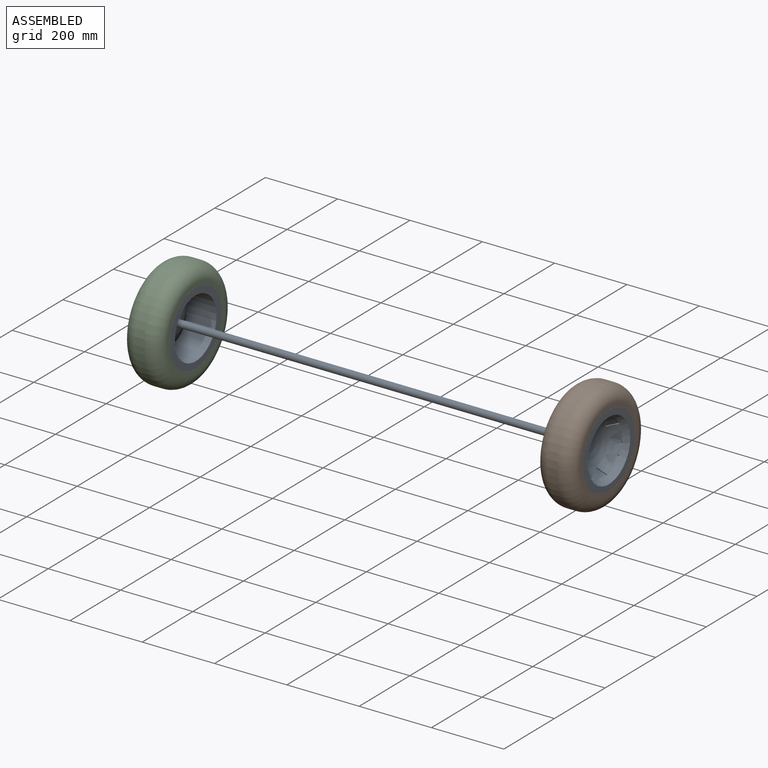
[diagram: assembled view]
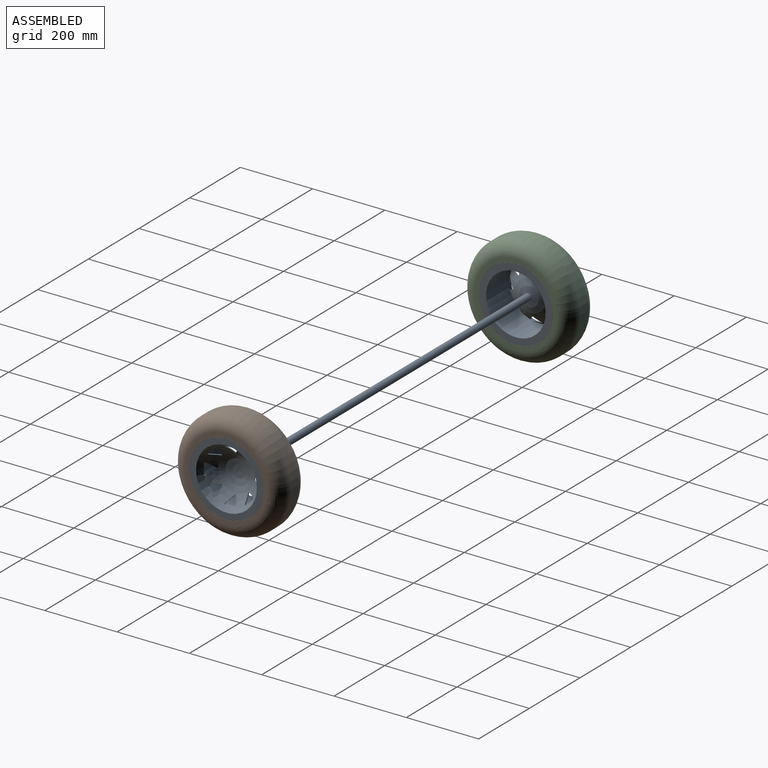
[diagram: assembled view, second angle]
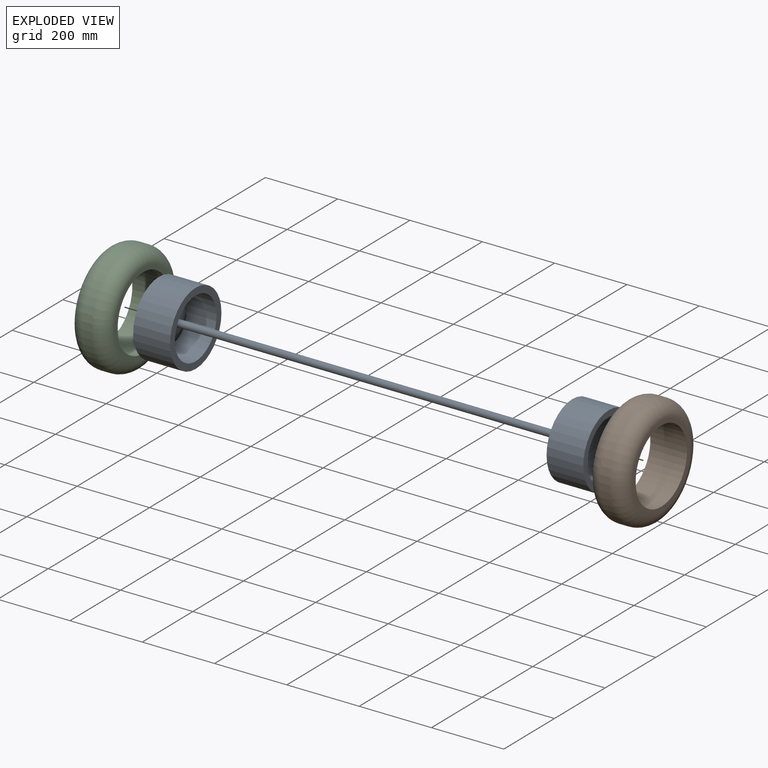
[diagram: exploded view]
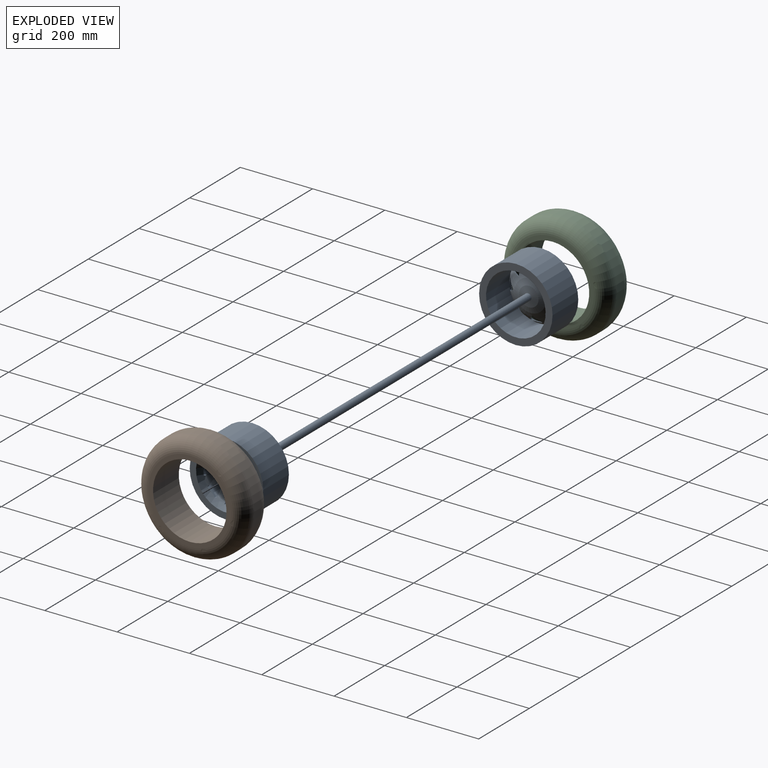
[diagram: exploded view, second angle]
ASSEMBLY  parts=3 mates=2
PART A: 109 faces, bbox 1244.6x203.2x203.2 mm
  f0: sphere r=95.25mm, area 25593.6mm2, adj f4,f13,f14,f15,f16,f17,f18,f19
  f1: sphere r=95.25mm, area 25593.6mm2, adj f5,f61,f62,f63,f64,f65,f66,f67
  f2: sphere r=98.42mm, area 22774.8mm2, adj f8,f9,f61,f62,f63,f64,f65,f66
  f3: sphere r=98.42mm, area 22774.8mm2, adj f9,f10,f13,f14,f15,f16,f17,f18
  f4: plane 203.2x203.2mm, normal (-1,0,0), area 10134.1mm2, adj f0,f12
  f5: plane 203.2x203.2mm, normal (1,0,0), area 10134.1mm2, adj f1,f6
  f6: cylinder r=101.6mm len=203.2mm, axis (-1,0,0), area 64858.6mm2, adj f5,f7
  f7: plane 203.2x203.2mm, normal (-1,0,0), area 11020.9mm2, adj f6,f8
  f8: cylinder r=82.55mm len=165.1mm, axis (-1,0,0), area 47951.6mm2, adj f2,f7
  f9: cylinder r=9.53mm len=1137.57mm, axis (-1,0,0), area 68080.8mm2, adj f2,f3
  f10: cylinder r=82.55mm len=165.1mm, axis (-1,0,0), area 47951.6mm2, adj f3,f11
  f11: plane 203.2x203.2mm, normal (1,0,0), area 11020.9mm2, adj f10,f12
  f12: cylinder r=101.6mm len=203.2mm, axis (-1,0,0), area 64858.6mm2, adj f4,f11
  f13: cylinder r=2.54mm len=9.19mm, axis (-1,0,0), area 28.3mm2, adj f0,f3,f14,f18
  f14: plane 19.7x16.44mm, normal (0,0.64,-0.77), area 89.5mm2, adj f0,f3,f13,f15
  f15: cylinder r=2.54mm len=4.4mm, axis (-1,0,0), area 16.8mm2, adj f0,f3,f14,f16
  f16: plane 19.7x16.44mm, normal (0,0.64,0.77), area 89.5mm2, adj f0,f3,f15,f17
  f17: cylinder r=2.54mm len=9.19mm, axis (-1,0,0), area 28.3mm2, adj f0,f3,f16,f18
  f18: plane 27.59x6.5mm, normal (0,-1,0), area 136.3mm2, adj f0,f3,f13,f17
  f19: cylinder r=2.54mm len=9.19mm, axis (-1,0,0), area 28.3mm2, adj f0,f3,f20,f24
  f20: plane 19.51x19.51mm, normal (0,-0.71,-0.71), area 136.3mm2, adj f0,f3,f19,f21
  f21: cylinder r=2.54mm len=9.19mm, axis (-1,0,0), area 28.3mm2, adj f0,f3,f20,f22
  f22: plane 21.38x19.7mm, normal (0,1,-0.09), area 89.5mm2, adj f0,f3,f21,f23
  f23: cylinder r=2.54mm len=4.4mm, axis (-1,0,0), area 16.8mm2, adj f0,f3,f22,f24
  f24: plane 21.38x19.7mm, normal (0,-0.09,1), area 89.5mm2, adj f0,f3,f19,f23
  f25: cylinder r=2.54mm len=9.19mm, axis (-1,0,0), area 28.3mm2, adj f0,f3,f26,f30
  f26: plane 27.59x6.5mm, normal (0,0,-1), area 136.3mm2, adj f0,f3,f25,f27
  f27: cylinder r=2.54mm len=9.19mm, axis (-1,0,0), area 28.3mm2, adj f0,f3,f26,f28
  f28: plane 19.7x16.44mm, normal (0,0.77,0.64), area 89.5mm2, adj f0,f3,f27,f29
  f29: cylinder r=2.54mm len=4.4mm, axis (-1,0,0), area 16.8mm2, adj f0,f3,f28,f30
  f30: plane 19.7x16.44mm, normal (0,-0.77,0.64), area 89.5mm2, adj f0,f3,f25,f29
  f31: cylinder r=2.54mm len=9.19mm, axis (-1,0,0), area 28.3mm2, adj f0,f3,f32,f36
  f32: plane 19.51x19.51mm, normal (0,-0.71,0.71), area 136.3mm2, adj f0,f3,f31,f33
  f33: cylinder r=2.54mm len=9.19mm, axis (-1,0,0), area 28.3mm2, adj f0,f3,f32,f34
  f34: plane 21.38x19.7mm, normal (0,-0.09,-1), area 89.5mm2, adj f0,f3,f33,f35
  f35: cylinder r=2.54mm len=4.4mm, axis (-1,0,0), area 16.8mm2, adj f0,f3,f34,f36
  f36: plane 21.38x19.7mm, normal (0,1,0.09), area 89.5mm2, adj f0,f3,f31,f35
  f37: cylinder r=2.54mm len=9.19mm, axis (-1,0,0), area 28.3mm2, adj f0,f3,f38,f42
  f38: plane 27.59x6.5mm, normal (0,0,1), area 136.3mm2, adj f0,f3,f37,f39
  f39: cylinder r=2.54mm len=9.19mm, axis (-1,0,0), area 28.3mm2, adj f0,f3,f38,f40
  f40: plane 19.7x16.44mm, normal (0,-0.77,-0.64), area 89.5mm2, adj f0,f3,f39,f41
  f41: cylinder r=2.54mm len=4.4mm, axis (-1,0,0), area 16.8mm2, adj f0,f3,f40,f42
  f42: plane 19.7x16.44mm, normal (0,0.77,-0.64), area 89.5mm2, adj f0,f3,f37,f41
  f43: cylinder r=2.54mm len=9.19mm, axis (-1,0,0), area 28.3mm2, adj f0,f3,f44,f48
  f44: plane 19.51x19.51mm, normal (0,0.71,0.71), area 136.3mm2, adj f0,f3,f43,f45
  f45: cylinder r=2.54mm len=9.19mm, axis (-1,0,0), area 28.3mm2, adj f0,f3,f44,f46
  f46: plane 21.38x19.7mm, normal (0,-1,0.09), area 89.5mm2, adj f0,f3,f45,f47
  f47: cylinder r=2.54mm len=4.4mm, axis (-1,0,0), area 16.8mm2, adj f0,f3,f46,f48
  f48: plane 21.38x19.7mm, normal (0,0.09,-1), area 89.5mm2, adj f0,f3,f43,f47
  f49: cylinder r=2.54mm len=9.19mm, axis (-1,0,0), area 28.3mm2, adj f0,f3,f50,f54
  f50: plane 27.59x6.5mm, normal (0,1,0), area 136.3mm2, adj f0,f3,f49,f51
  f51: cylinder r=2.54mm len=9.19mm, axis (-1,0,0), area 28.3mm2, adj f0,f3,f50,f52
  f52: plane 19.7x16.44mm, normal (0,-0.64,0.77), area 89.5mm2, adj f0,f3,f51,f53
  f53: cylinder r=2.54mm len=4.4mm, axis (-1,0,0), area 16.8mm2, adj f0,f3,f52,f54
  f54: plane 19.7x16.44mm, normal (0,-0.64,-0.77), area 89.5mm2, adj f0,f3,f49,f53
  f55: cylinder r=2.54mm len=9.19mm, axis (-1,0,0), area 28.3mm2, adj f0,f3,f56,f60
  f56: plane 19.51x19.51mm, normal (0,0.71,-0.71), area 136.3mm2, adj f0,f3,f55,f57
  f57: cylinder r=2.54mm len=9.19mm, axis (-1,0,0), area 28.3mm2, adj f0,f3,f56,f58
  f58: plane 21.38x19.7mm, normal (0,0.09,1), area 89.5mm2, adj f0,f3,f57,f59
  f59: cylinder r=2.54mm len=4.4mm, axis (-1,0,0), area 16.8mm2, adj f0,f3,f58,f60
  f60: plane 21.38x19.7mm, normal (0,-1,-0.09), area 89.5mm2, adj f0,f3,f55,f59
  f61: plane 27.59x6.5mm, normal (0,-1,0), area 136.3mm2, adj f1,f2,f62,f66
  f62: cylinder r=2.54mm len=9.19mm, axis (-1,0,0), area 28.3mm2, adj f1,f2,f61,f63
  f63: plane 19.7x16.44mm, normal (0,0.64,0.77), area 89.5mm2, adj f1,f2,f62,f64
  f64: cylinder r=2.54mm len=4.4mm, axis (-1,0,0), area 16.8mm2, adj f1,f2,f63,f65
  f65: plane 19.7x16.44mm, normal (0,0.64,-0.77), area 89.5mm2, adj f1,f2,f64,f66
  f66: cylinder r=2.54mm len=9.19mm, axis (-1,0,0), area 28.3mm2, adj f1,f2,f61,f65
  f67: plane 21.38x19.7mm, normal (0,-0.09,1), area 89.5mm2, adj f1,f2,f68,f72
  f68: cylinder r=2.54mm len=4.4mm, axis (-1,0,0), area 16.8mm2, adj f1,f2,f67,f69
  f69: plane 21.38x19.7mm, normal (0,1,-0.09), area 89.5mm2, adj f1,f2,f68,f70
  f70: cylinder r=2.54mm len=9.19mm, axis (-1,0,0), area 28.3mm2, adj f1,f2,f69,f71
  f71: plane 19.51x19.51mm, normal (0,-0.71,-0.71), area 136.3mm2, adj f1,f2,f70,f72
  f72: cylinder r=2.54mm len=9.19mm, axis (-1,0,0), area 28.3mm2, adj f1,f2,f67,f71
  f73: plane 19.7x16.44mm, normal (0,-0.77,0.64), area 89.5mm2, adj f1,f2,f74,f78
  f74: cylinder r=2.54mm len=4.4mm, axis (-1,0,0), area 16.8mm2, adj f1,f2,f73,f75
  f75: plane 19.7x16.44mm, normal (0,0.77,0.64), area 89.5mm2, adj f1,f2,f74,f76
  f76: cylinder r=2.54mm len=9.19mm, axis (-1,0,0), area 28.3mm2, adj f1,f2,f75,f77
  f77: plane 27.59x6.5mm, normal (0,0,-1), area 136.3mm2, adj f1,f2,f76,f78
  f78: cylinder r=2.54mm len=9.19mm, axis (-1,0,0), area 28.3mm2, adj f1,f2,f73,f77
  f79: plane 21.38x19.7mm, normal (0,1,0.09), area 89.5mm2, adj f1,f2,f80,f84
  f80: cylinder r=2.54mm len=4.4mm, axis (-1,0,0), area 16.8mm2, adj f1,f2,f79,f81
  f81: plane 21.38x19.7mm, normal (0,-0.09,-1), area 89.5mm2, adj f1,f2,f80,f82
  f82: cylinder r=2.54mm len=9.19mm, axis (-1,0,0), area 28.3mm2, adj f1,f2,f81,f83
  f83: plane 19.51x19.51mm, normal (0,-0.71,0.71), area 136.3mm2, adj f1,f2,f82,f84
  f84: cylinder r=2.54mm len=9.19mm, axis (-1,0,0), area 28.3mm2, adj f1,f2,f79,f83
  f85: plane 19.7x16.44mm, normal (0,0.77,-0.64), area 89.5mm2, adj f1,f2,f86,f90
  f86: cylinder r=2.54mm len=4.4mm, axis (-1,0,0), area 16.8mm2, adj f1,f2,f85,f87
  f87: plane 19.7x16.44mm, normal (0,-0.77,-0.64), area 89.5mm2, adj f1,f2,f86,f88
  f88: cylinder r=2.54mm len=9.19mm, axis (-1,0,0), area 28.3mm2, adj f1,f2,f87,f89
  f89: plane 27.59x6.5mm, normal (0,0,1), area 136.3mm2, adj f1,f2,f88,f90
  f90: cylinder r=2.54mm len=9.19mm, axis (-1,0,0), area 28.3mm2, adj f1,f2,f85,f89
  f91: plane 21.38x19.7mm, normal (0,0.09,-1), area 89.5mm2, adj f1,f2,f92,f96
  f92: cylinder r=2.54mm len=4.4mm, axis (-1,0,0), area 16.8mm2, adj f1,f2,f91,f93
  f93: plane 21.38x19.7mm, normal (0,-1,0.09), area 89.5mm2, adj f1,f2,f92,f94
  f94: cylinder r=2.54mm len=9.19mm, axis (-1,0,0), area 28.3mm2, adj f1,f2,f93,f95
  f95: plane 19.51x19.51mm, normal (0,0.71,0.71), area 136.3mm2, adj f1,f2,f94,f96
  f96: cylinder r=2.54mm len=9.19mm, axis (-1,0,0), area 28.3mm2, adj f1,f2,f91,f95
  f97: plane 19.7x16.44mm, normal (0,-0.64,-0.77), area 89.5mm2, adj f1,f2,f98,f102
  f98: cylinder r=2.54mm len=4.4mm, axis (-1,0,0), area 16.8mm2, adj f1,f2,f97,f99
  f99: plane 19.7x16.44mm, normal (0,-0.64,0.77), area 89.5mm2, adj f1,f2,f98,f100
  f100: cylinder r=2.54mm len=9.19mm, axis (-1,0,0), area 28.3mm2, adj f1,f2,f99,f101
  f101: plane 27.59x6.5mm, normal (0,1,0), area 136.3mm2, adj f1,f2,f100,f102
  f102: cylinder r=2.54mm len=9.19mm, axis (-1,0,0), area 28.3mm2, adj f1,f2,f97,f101
  f103: plane 21.38x19.7mm, normal (0,-1,-0.09), area 89.5mm2, adj f1,f2,f104,f108
  f104: cylinder r=2.54mm len=4.4mm, axis (-1,0,0), area 16.8mm2, adj f1,f2,f103,f105
  f105: plane 21.38x19.7mm, normal (0,0.09,1), area 89.5mm2, adj f1,f2,f104,f106
  f106: cylinder r=2.54mm len=9.19mm, axis (-1,0,0), area 28.3mm2, adj f1,f2,f105,f107
  f107: plane 19.51x19.51mm, normal (0,0.71,-0.71), area 136.3mm2, adj f1,f2,f106,f108
  f108: cylinder r=2.54mm len=9.19mm, axis (-1,0,0), area 28.3mm2, adj f1,f2,f103,f107
PART B: 6 faces, bbox 101.6x329.9x329.9 mm
  f0: cylinder r=101.6mm len=203.2mm, axis (1,0,0), area 64858.6mm2, adj f1,f3
  f1: plane 228.6x228.6mm, normal (1,0,0), area 8614mm2, adj f0,f4
  f2: cylinder r=152.4mm len=304.8mm, axis (1,0,0), area 24322mm2, adj f4,f5
  f3: plane 228.6x228.6mm, normal (-1,0,0), area 8614mm2, adj f0,f5
  f4: torus R=114.3mm, axis (1,0,0), area 52101.2mm2, adj f1,f2
  f5: torus R=114.3mm, axis (-1,0,0), area 52101.2mm2, adj f2,f3
PART C: 6 faces, bbox 101.6x329.9x329.9 mm
  f0: plane 228.6x228.6mm, normal (-1,0,0), area 8614mm2, adj f1,f5
  f1: cylinder r=101.6mm len=203.2mm, axis (1,0,0), area 64858.6mm2, adj f0,f2
  f2: plane 228.6x228.6mm, normal (1,0,0), area 8614mm2, adj f1,f4
  f3: cylinder r=152.4mm len=304.8mm, axis (1,0,0), area 24322mm2, adj f4,f5
  f4: torus R=114.3mm, axis (-1,0,0), area 52101.2mm2, adj f2,f3
  f5: torus R=114.3mm, axis (1,0,0), area 52101.2mm2, adj f0,f3
PLACE A t=(-132.97,-55.09,32.52)mm fixed
PLACE B t=(-132.97,-55.09,32.52)mm
PLACE C t=(-132.97,-55.09,32.52)mm
MATE fastened A.f6 <-> B.f0  axis (-1,0,0) through (438.53,-55.09,32.52)mm
MATE fastened A.f6 <-> C.f1  axis (-1,0,0) through (-704.47,-55.09,32.52)mm
